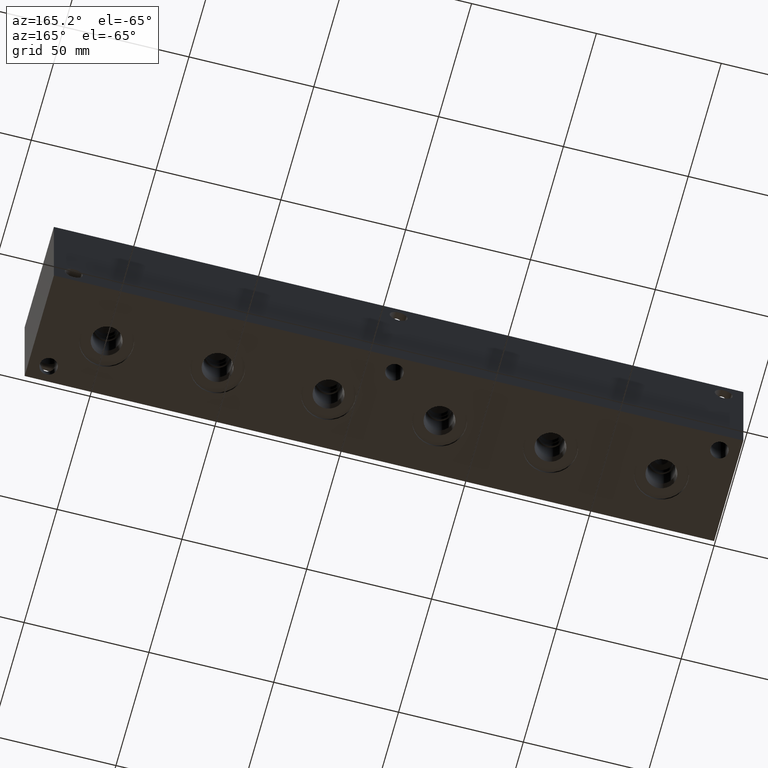
[diagram: clean part render]
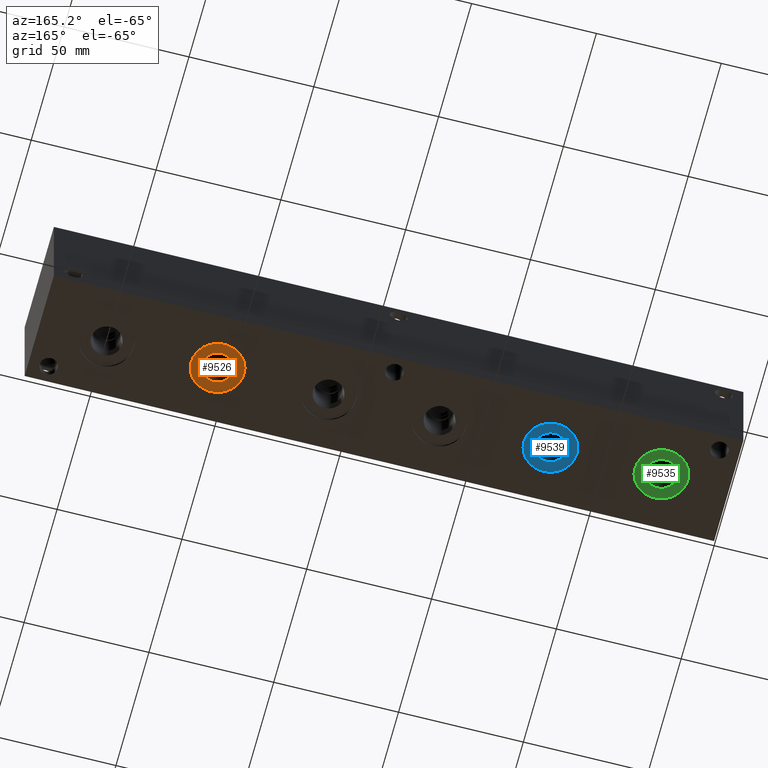
[diagram: same view with three faces highlighted in distinct colors, each labeled with its STEP entity id]
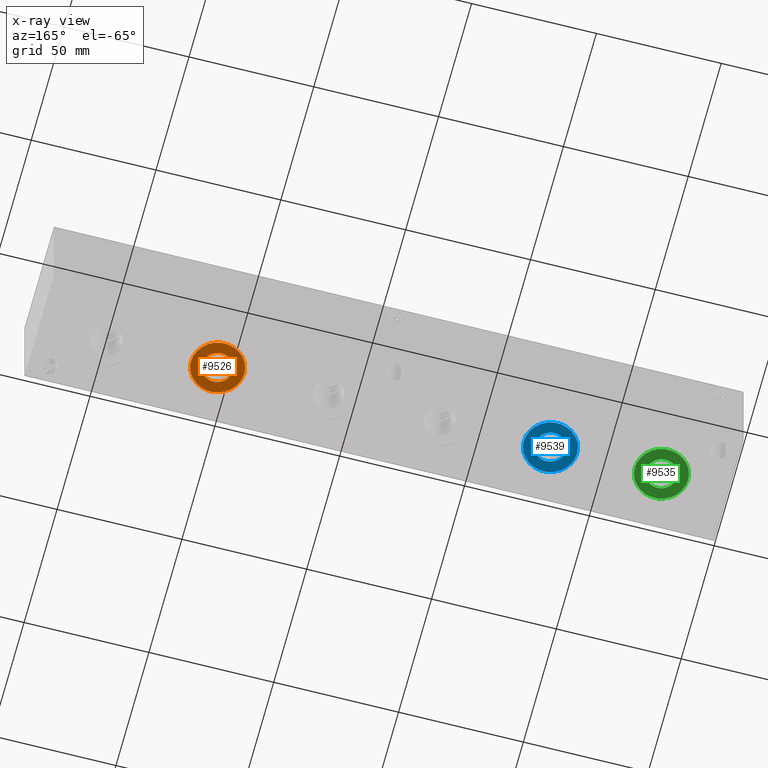
[diagram: x-ray of the same camera — body ghosted, the three highlighted faces saturated]
A machine part, auxiliary view with three faces highlighted in distinct colors.
The next image is the same camera in x-ray (body ghosted, the three faces saturated) — at least one of them is partly hidden behind the body in this view.
Their STEP definitions:

[orange] entity #9526 — the highlighted planar face has unit normal (0, 0, -1).
#308=CIRCLE('',#10048,10.6426);
#309=CIRCLE('',#10049,10.6426);
#310=CIRCLE('',#10050,6.1976);
#575=FACE_BOUND('',#1809,.T.);
#1255=FACE_OUTER_BOUND('',#1808,.T.);
#1808=EDGE_LOOP('',(#7788,#7789));
#1809=EDGE_LOOP('',(#7790));
#4305=VERTEX_POINT('',#16018);
#4306=VERTEX_POINT('',#16019);
#4307=VERTEX_POINT('',#16022);
#5517=EDGE_CURVE('',#4305,#4306,#308,.T.);
#5518=EDGE_CURVE('',#4306,#4305,#309,.T.);
#5519=EDGE_CURVE('',#4307,#4307,#310,.T.);
#7788=ORIENTED_EDGE('',*,*,#5517,.T.);
#7789=ORIENTED_EDGE('',*,*,#5518,.T.);
#7790=ORIENTED_EDGE('',*,*,#5519,.F.);
#8850=PLANE('',#10047);
#9526=ADVANCED_FACE('',(#1255,#575),#8850,.T.);
#10047=AXIS2_PLACEMENT_3D('',#16017,#11835,#11836);
#10048=AXIS2_PLACEMENT_3D('',#16020,#11837,#11838);
#10049=AXIS2_PLACEMENT_3D('',#16021,#11839,#11840);
#10050=AXIS2_PLACEMENT_3D('',#16023,#11841,#11842);
#11835=DIRECTION('center_axis',(0.,0.,-1.));
#11836=DIRECTION('ref_axis',(1.,0.,0.));
#11837=DIRECTION('center_axis',(0.,0.,-1.));
#11838=DIRECTION('ref_axis',(1.,0.,0.));
#11839=DIRECTION('center_axis',(0.,0.,-1.));
#11840=DIRECTION('ref_axis',(1.,0.,0.));
#11841=DIRECTION('center_axis',(0.,0.,-1.));
#11842=DIRECTION('ref_axis',(1.,0.,0.));
#16017=CARTESIAN_POINT('Origin',(204.7748,22.225,0.7874));
#16018=CARTESIAN_POINT('',(215.4174,22.225,0.7874));
#16019=CARTESIAN_POINT('',(194.1322,22.225,0.7874));
#16020=CARTESIAN_POINT('Origin',(204.7748,22.225,0.7874));
#16021=CARTESIAN_POINT('Origin',(204.7748,22.225,0.7874));
#16022=CARTESIAN_POINT('',(198.5772,22.225,0.7874));
#16023=CARTESIAN_POINT('Origin',(204.7748,22.225,0.7874));

[blue] entity #9539 — the highlighted planar face has unit normal (0, 0, -1).
#328=CIRCLE('',#10092,10.6426);
#329=CIRCLE('',#10093,10.6426);
#330=CIRCLE('',#10094,6.1976);
#578=FACE_BOUND('',#1825,.T.);
#1268=FACE_OUTER_BOUND('',#1824,.T.);
#1824=EDGE_LOOP('',(#7857,#7858));
#1825=EDGE_LOOP('',(#7859));
#4334=VERTEX_POINT('',#16101);
#4335=VERTEX_POINT('',#16102);
#4336=VERTEX_POINT('',#16105);
#5558=EDGE_CURVE('',#4334,#4335,#328,.T.);
#5559=EDGE_CURVE('',#4335,#4334,#329,.T.);
#5560=EDGE_CURVE('',#4336,#4336,#330,.T.);
#7857=ORIENTED_EDGE('',*,*,#5558,.T.);
#7858=ORIENTED_EDGE('',*,*,#5559,.T.);
#7859=ORIENTED_EDGE('',*,*,#5560,.F.);
#8853=PLANE('',#10091);
#9539=ADVANCED_FACE('',(#1268,#578),#8853,.T.);
#10091=AXIS2_PLACEMENT_3D('',#16100,#11933,#11934);
#10092=AXIS2_PLACEMENT_3D('',#16103,#11935,#11936);
#10093=AXIS2_PLACEMENT_3D('',#16104,#11937,#11938);
#10094=AXIS2_PLACEMENT_3D('',#16106,#11939,#11940);
#11933=DIRECTION('center_axis',(0.,0.,-1.));
#11934=DIRECTION('ref_axis',(1.,0.,0.));
#11935=DIRECTION('center_axis',(0.,0.,-1.));
#11936=DIRECTION('ref_axis',(1.,0.,0.));
#11937=DIRECTION('center_axis',(0.,0.,-1.));
#11938=DIRECTION('ref_axis',(1.,0.,0.));
#11939=DIRECTION('center_axis',(0.,0.,-1.));
#11940=DIRECTION('ref_axis',(1.,0.,0.));
#16100=CARTESIAN_POINT('Origin',(71.4248,22.225,0.7874));
#16101=CARTESIAN_POINT('',(82.0674,22.225,0.7874));
#16102=CARTESIAN_POINT('',(60.7822,22.225,0.7874));
#16103=CARTESIAN_POINT('Origin',(71.4248,22.225,0.7874));
#16104=CARTESIAN_POINT('Origin',(71.4248,22.225,0.7874));
#16105=CARTESIAN_POINT('',(65.2272,22.225,0.7874));
#16106=CARTESIAN_POINT('Origin',(71.4248,22.225,0.7874));

[green] entity #9535 — the highlighted planar face has unit normal (0, 0, -1).
#321=CIRCLE('',#10079,10.6426);
#322=CIRCLE('',#10080,10.6426);
#323=CIRCLE('',#10081,6.1976);
#577=FACE_BOUND('',#1820,.T.);
#1264=FACE_OUTER_BOUND('',#1819,.T.);
#1819=EDGE_LOOP('',(#7836,#7837));
#1820=EDGE_LOOP('',(#7838));
#4325=VERTEX_POINT('',#16076);
#4326=VERTEX_POINT('',#16077);
#4327=VERTEX_POINT('',#16080);
#5546=EDGE_CURVE('',#4325,#4326,#321,.T.);
#5547=EDGE_CURVE('',#4326,#4325,#322,.T.);
#5548=EDGE_CURVE('',#4327,#4327,#323,.T.);
#7836=ORIENTED_EDGE('',*,*,#5546,.T.);
#7837=ORIENTED_EDGE('',*,*,#5547,.T.);
#7838=ORIENTED_EDGE('',*,*,#5548,.F.);
#8852=PLANE('',#10078);
#9535=ADVANCED_FACE('',(#1264,#577),#8852,.T.);
#10078=AXIS2_PLACEMENT_3D('',#16075,#11904,#11905);
#10079=AXIS2_PLACEMENT_3D('',#16078,#11906,#11907);
#10080=AXIS2_PLACEMENT_3D('',#16079,#11908,#11909);
#10081=AXIS2_PLACEMENT_3D('',#16081,#11910,#11911);
#11904=DIRECTION('center_axis',(0.,0.,-1.));
#11905=DIRECTION('ref_axis',(1.,0.,0.));
#11906=DIRECTION('center_axis',(0.,0.,-1.));
#11907=DIRECTION('ref_axis',(1.,0.,0.));
#11908=DIRECTION('center_axis',(0.,0.,-1.));
#11909=DIRECTION('ref_axis',(1.,0.,0.));
#11910=DIRECTION('center_axis',(0.,0.,-1.));
#11911=DIRECTION('ref_axis',(1.,0.,0.));
#16075=CARTESIAN_POINT('Origin',(26.9748,22.225,0.7874));
#16076=CARTESIAN_POINT('',(37.6174,22.225,0.7874));
#16077=CARTESIAN_POINT('',(16.3322,22.225,0.7874));
#16078=CARTESIAN_POINT('Origin',(26.9748,22.225,0.7874));
#16079=CARTESIAN_POINT('Origin',(26.9748,22.225,0.7874));
#16080=CARTESIAN_POINT('',(20.7772,22.225,0.7874));
#16081=CARTESIAN_POINT('Origin',(26.9748,22.225,0.7874));